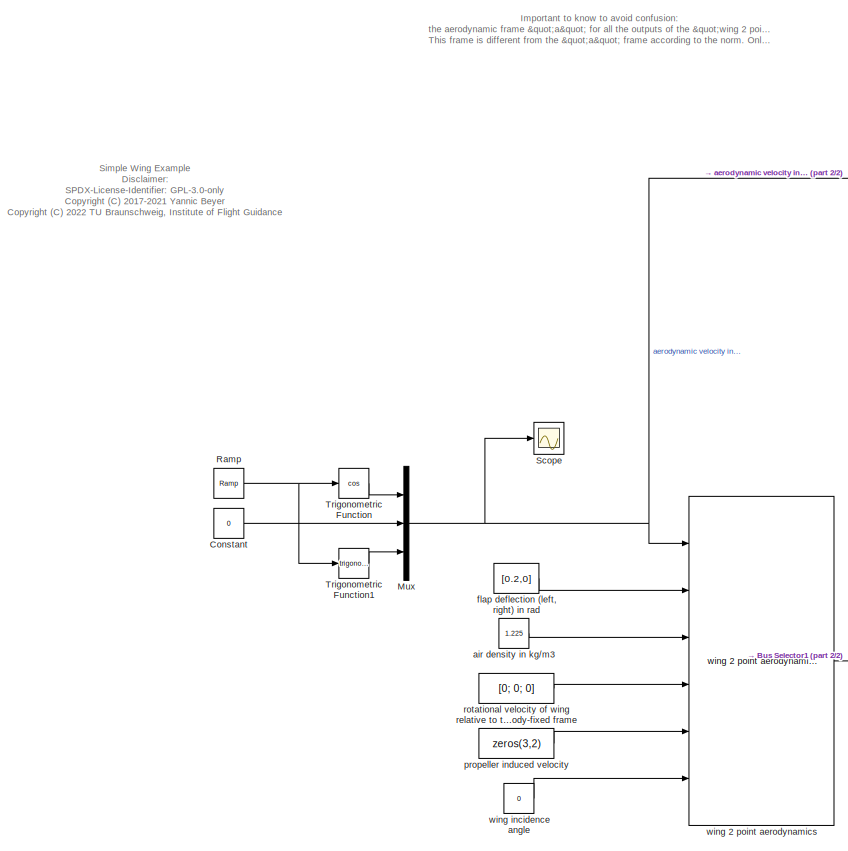
[diagram: root canvas - part 1/2, left side, full height]
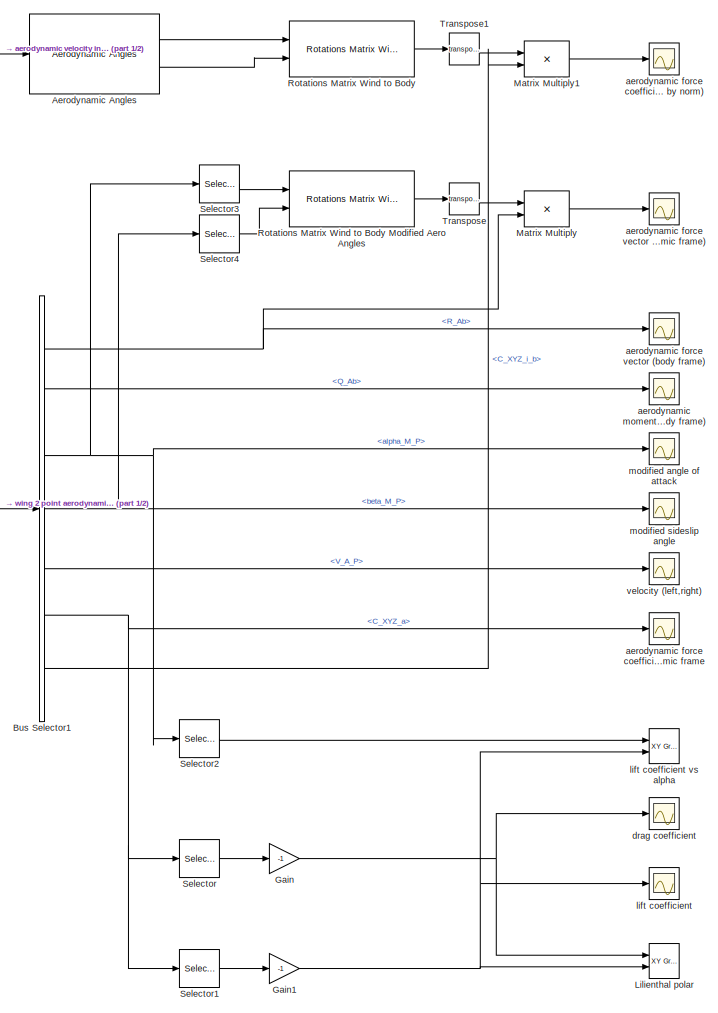
[diagram: root canvas - part 2/2, right side, full height]
MODEL slx_19e4713a41e1
KIND model
CONFIG AbsTol = auto
CONFIG EnableMultiTasking = off
CONFIG FixedStep = 0.01
CONFIG MaxStep = auto
CONFIG MinStep = auto
CONFIG RelTol = 1e-3
CONFIG SampleTimeConstraint = Unconstrained
CONFIG Solver = FixedStepAuto
CONFIG SolverName = FixedStepAuto
CONFIG StartTime = 0.0
CONFIG StopTime = 10
BLOCK [Reference] Aerodynamic Angles  REF=flight_parameters_lib/Aerodynamic Angles  (lib defined in slx_01e6108afe6f)
  Ports = [1, 2]
  SourceBlock = flight_parameters_lib/Aerodynamic Angles
  SourceProductName = LADAC
  SourceType = SubSystem
BLOCK [BusSelector] Bus Selector1
  OutputAsBus = off
  OutputSignals = dynamicsBody.R_Ab,dynamicsBody.Q_Ab,aeroAxes.alpha_M_P,aeroAxes.beta_M_P,aeroAxes.V_A_P,dynamicsBody.C_XYZ_a,dynamicsBody.C_XYZ_i_b
  Ports = [1, 7]
BLOCK [Constant] Constant
  Value = 0
BLOCK [Gain] Gain
  Gain = -1
  OutDataTypeStr = Inherit: Inherit via internal rule
  ParamDataTypeStr = Inherit: Inherit via internal rule
  SaturateOnIntegerOverflow = off
BLOCK [Gain] Gain1
  Gain = -1
  OutDataTypeStr = Inherit: Inherit via internal rule
  ParamDataTypeStr = Inherit: Inherit via internal rule
  SaturateOnIntegerOverflow = off
BLOCK [Reference] Lilienthal polar  REF=simulink/Sinks/XY Graph
  Ports = [2]
  SourceBlock = simulink/Sinks/XY Graph
  SourceProductBaseCode = SL
  SourceProductName = Simulink
  SourceType = XY scope.
BLOCK [Product] Matrix Multiply
  InputSameDT = off
  Multiplication = Matrix(*)
  OutDataTypeStr = Inherit: Inherit via internal rule
  Ports = [2, 1]
  RndMeth = Floor
  SaturateOnIntegerOverflow = off
BLOCK [Product] Matrix Multiply1
  InputSameDT = off
  Multiplication = Matrix(*)
  OutDataTypeStr = Inherit: Inherit via internal rule
  Ports = [2, 1]
  RndMeth = Floor
  SaturateOnIntegerOverflow = off
BLOCK [Mux] Mux
  DisplayOption = bar
  Inputs = 3
  Ports = [3, 1]
BLOCK [Reference] Ramp  REF=simulink/Sources/Ramp
  Ports = [0, 1]
  SourceBlock = simulink/Sources/Ramp
  SourceProductBaseCode = SL
  SourceProductName = Simulink
  SourceType = Ramp
BLOCK [Reference] Rotations Matrix Wind to Body  REF=axes_transformation_lib/Rotations Matrix  (lib defined in slx_69e2413c78c0)
Wind to Body
  Ports = [2, 1]
  SourceBlock = axes_transformation_lib/Rotations Matrix\nWind to Body
  SourceProductName = LADAC
  SourceType = SubSystem
BLOCK [Reference] Rotations Matrix Wind to Body Modified Aero Angles  REF=axes_transformation_lib/Rotations Matrix  (lib defined in slx_69e2413c78c0)
Wind to Body
Modified Aero Angles
  Ports = [2, 1]
  SourceBlock = axes_transformation_lib/Rotations Matrix\nWind to Body\nModified Aero Angles
  SourceProductName = LADAC
  SourceType = SubSystem
BLOCK [Scope] Scope
  Floating = off
  NumInputPorts = 1
  Ports = [1]
  ScopeSpecificationString = Simulink.scopes.TimeScopeBlockCfg('CurrentConfiguration', extmgr.ConfigurationSet(extmgr.Configuration('Core','General UI',true),extmgr.Configuration('Core','Source UI',true),extmgr.Configuration('Sources','WiredSimulink',true,'DataLoggingVariableName','ScopeData3'),extmgr.Configuration('Visuals','Time Domain',true,'SerializedDisplays',{struct('MinYLimReal','-1.25','MaxYLimReal','1.25','YLabelReal...<+1473ch>
BLOCK [Selector] Selector
  IndexOptions = Index vector (dialog),Index vector (dialog)
  Indices = 1,1
  InputPortWidth = 3
  NumberOfDimensions = 2
  OutputSizes = 1,1
  Ports = [1, 1]
BLOCK [Selector] Selector1
  IndexOptions = Index vector (dialog),Index vector (dialog)
  Indices = 3,1
  InputPortWidth = 3
  NumberOfDimensions = 2
  OutputSizes = 1,1
  Ports = [1, 1]
BLOCK [Selector] Selector2
  IndexOptions = Index vector (dialog)
  Indices = 1
  InputPortWidth = 2
  OutputSizes = 1
  Ports = [1, 1]
BLOCK [Selector] Selector3
  IndexOptions = Index vector (dialog)
  Indices = 1
  InputPortWidth = 2
  OutputSizes = 1
  Ports = [1, 1]
BLOCK [Selector] Selector4
  IndexOptions = Index vector (dialog)
  Indices = 1
  InputPortWidth = 2
  OutputSizes = 1
  Ports = [1, 1]
BLOCK [Math] Transpose
  Operator = transpose
  Ports = [1, 1]
BLOCK [Math] Transpose1
  Operator = transpose
  Ports = [1, 1]
BLOCK [Trigonometry] Trigonometric Function
  Operator = cos
  Ports = [1, 1]
BLOCK [Trigonometry] Trigonometric Function1
  Ports = [1, 1]
BLOCK [Scope] aerodynamic force coefficients (as defined by norm)
  Floating = off
  NumInputPorts = 1
  Ports = [1]
  ScopeSpecificationString = Simulink.scopes.TimeScopeBlockCfg('CurrentConfiguration', extmgr.ConfigurationSet(extmgr.Configuration('Core','General UI',true),extmgr.Configuration('Core','Source UI',true),extmgr.Configuration('Sources','WiredSimulink',true,'DataLoggingVariableName','ScopeData1'),extmgr.Configuration('Visuals','Time Domain',true,'SerializedDisplays',{struct('MinYLimReal','-1.84728','MaxYLimReal','1.29568','YLab...<+1553ch>
BLOCK [Scope] aerodynamic force coefficients in modified aerodynamic frame
  Floating = off
  NumInputPorts = 1
  Ports = [1]
  ScopeSpecificationString = Simulink.scopes.TimeScopeBlockCfg('CurrentConfiguration', extmgr.ConfigurationSet(extmgr.Configuration('Core','General UI',true),extmgr.Configuration('Core','Source UI',true),extmgr.Configuration('Sources','WiredSimulink',true,'DataLoggingVariableName','ScopeData5'),extmgr.Configuration('Visuals','Time Domain',true,'SerializedDisplays',{struct('MinYLimReal','-1.84754','MaxYLimReal','1.29804','YLab...<+1511ch>
BLOCK [Scope] aerodynamic force vector (aerodynamic frame)
  Floating = off
  NumInputPorts = 1
  Ports = [1]
  ScopeSpecificationString = Simulink.scopes.TimeScopeBlockCfg('CurrentConfiguration', extmgr.ConfigurationSet(extmgr.Configuration('Core','General UI',true),extmgr.Configuration('Core','Source UI',true),extmgr.Configuration('Sources','WiredSimulink',true,'DataLoggingVariableName','ScopeData6'),extmgr.Configuration('Visuals','Time Domain',true,'SerializedDisplays',{struct('MinYLimReal','-0.23186','MaxYLimReal','0.12857','YLab...<+1487ch>
BLOCK [Scope] aerodynamic force vector (body frame)
  Floating = off
  NumInputPorts = 1
  Ports = [1]
  ScopeSpecificationString = Simulink.scopes.TimeScopeBlockCfg('CurrentConfiguration', extmgr.ConfigurationSet(extmgr.Configuration('Core','General UI',true),extmgr.Configuration('Core','Source UI',true),extmgr.Configuration('Sources','WiredSimulink',true),extmgr.Configuration('Visuals','Time Domain',true,'SerializedDisplays',{struct('MinYLimReal','-0.24477','MaxYLimReal','0.24476','YLabelReal','','MinYLimMag','0.00000','MaxY...<+1405ch>
BLOCK [Scope] aerodynamic moment vector (body frame)
  Floating = off
  NumInputPorts = 1
  Ports = [1]
  ScopeSpecificationString = Simulink.scopes.TimeScopeBlockCfg('CurrentConfiguration', extmgr.ConfigurationSet(extmgr.Configuration('Core','General UI',true),extmgr.Configuration('Core','Source UI',true),extmgr.Configuration('Sources','WiredSimulink',true,'DataLoggingVariableName','ScopeData1'),extmgr.Configuration('Visuals','Time Domain',true),extmgr.Configuration('Tools','Plot Navigation',true),extmgr.Configuration('Tools',...<+40ch>
BLOCK [Constant] air density in kg//m3
  Value = 1.225
BLOCK [Scope] drag coefficient
  Floating = off
  NumInputPorts = 1
  Ports = [1]
  ScopeSpecificationString = Simulink.scopes.TimeScopeBlockCfg('CurrentConfiguration', extmgr.ConfigurationSet(extmgr.Configuration('Core','General UI',true),extmgr.Configuration('Core','Source UI',true),extmgr.Configuration('Sources','WiredSimulink',true,'DataLoggingVariableName','ScopeData8'),extmgr.Configuration('Visuals','Time Domain',true,'SerializedDisplays',{struct('MinYLimReal','-0.07912','MaxYLimReal','1.71211','YLab...<+1363ch>
BLOCK [Constant] flap deflection (left, right) in rad
  Value = [0.2,0]
  VectorParams1D = off
BLOCK [Scope] lift coefficient
  Floating = off
  NumInputPorts = 1
  Ports = [1]
  ScopeSpecificationString = Simulink.scopes.TimeScopeBlockCfg('CurrentConfiguration', extmgr.ConfigurationSet(extmgr.Configuration('Core','General UI',true),extmgr.Configuration('Core','Source UI',true),extmgr.Configuration('Sources','WiredSimulink',true,'DataLoggingVariableName','ScopeData9'),extmgr.Configuration('Visuals','Time Domain',true,'SerializedDisplays',{struct('MinYLimReal','-0.84433','MaxYLimReal','1.18558','YLab...<+1416ch>
BLOCK [Reference] lift coefficient vs alpha  REF=simulink/Sinks/XY Graph
  Ports = [2]
  SourceBlock = simulink/Sinks/XY Graph
  SourceProductBaseCode = SL
  SourceProductName = Simulink
  SourceType = XY scope.
BLOCK [Scope] modified angle of attack
  Floating = off
  NumInputPorts = 1
  Ports = [1]
  ScopeSpecificationString = Simulink.scopes.TimeScopeBlockCfg('CurrentConfiguration', extmgr.ConfigurationSet(extmgr.Configuration('Core','General UI',true),extmgr.Configuration('Core','Source UI',true),extmgr.Configuration('Sources','WiredSimulink',true,'DataLoggingVariableName','ScopeData2'),extmgr.Configuration('Visuals','Time Domain',true,'SerializedDisplays',{struct('MinYLimReal','-1.96071','MaxYLimReal','1.9623','YLabe...<+1384ch>
BLOCK [Scope] modified sideslip angle
  Floating = off
  NumInputPorts = 1
  Ports = [1]
  ScopeSpecificationString = Simulink.scopes.TimeScopeBlockCfg('CurrentConfiguration', extmgr.ConfigurationSet(extmgr.Configuration('Core','General UI',true),extmgr.Configuration('Core','Source UI',true),extmgr.Configuration('Sources','WiredSimulink',true,'DataLoggingVariableName','ScopeData7'),extmgr.Configuration('Visuals','Time Domain',true,'SerializedDisplays',{struct('MinYLimReal','-0.3927','MaxYLimReal','3.53429','YLabe...<+1409ch>
BLOCK [Constant] propeller induced velocity
  Value = zeros(3,2)
BLOCK [Constant] rotational velocity of wing relative to the air in body-fixed frame
  Value = [0; 0; 0]
  VectorParams1D = off
BLOCK [Scope] velocity (left,right)
  Floating = off
  NumInputPorts = 1
  Ports = [1]
  ScopeSpecificationString = Simulink.scopes.TimeScopeBlockCfg('CurrentConfiguration', extmgr.ConfigurationSet(extmgr.Configuration('Core','General UI',true),extmgr.Configuration('Core','Source UI',true),extmgr.Configuration('Sources','WiredSimulink',true,'DataLoggingVariableName','ScopeData4'),extmgr.Configuration('Visuals','Time Domain',true,'SerializedDisplays',{struct('MinYLimReal','0.9','MaxYLimReal','1.1','YLabelReal','...<+1371ch>
BLOCK [Reference] wing 2 point aerodynamics  REF=simple_wing_lib/wing 2 point aerodynamics  (lib defined in slx_d7e68b13d310)
  Ports = [6, 1]
  SourceBlock = simple_wing_lib/wing 2 point aerodynamics
  SourceProductName = LADAC
BLOCK [Constant] wing incidence angle 
  Value = 0
ANNOTATION (root): Important to know to avoid confusion: the aerodynamic frame "a" for all the outputs of the "wing 2 point aerodynamics" block is defined by the modified angles of attack alpha_M and beta_M. This frame is different from the "a" frame according to the norm. Only the x component is equal. The y and z component are only equal in special cases.
ANNOTATION (root): Simple Wing Example Disclaimer: SPDX-License-Identifier: GPL-3.0-only <copyright redacted>
LINE Aerodynamic Angles:1 -> Rotations Matrix Wind to Body:1
LINE Aerodynamic Angles:2 -> Rotations Matrix Wind to Body:2
NET Bus Selector1:1 -> Matrix Multiply:2, aerodynamic force vector (body frame):1
LINE Bus Selector1:2 -> aerodynamic moment vector (body frame):1
NET Bus Selector1:3 -> Selector2:1, Selector3:1, modified angle of attack:1
NET Bus Selector1:4 -> Selector4:1, modified sideslip angle:1
LINE Bus Selector1:5 -> velocity (left,right):1
NET Bus Selector1:6 -> Selector1:1, Selector:1, aerodynamic force coefficients in modified aerodynamic frame:1
LINE Bus Selector1:7 -> Matrix Multiply1:2
LINE Constant:1 -> Mux:2
NET Gain1:1 -> Lilienthal polar:2, lift coefficient vs alpha:2, lift coefficient:1
NET Gain:1 -> Lilienthal polar:1, drag coefficient:1
LINE Matrix Multiply1:1 -> aerodynamic force coefficients (as defined by norm):1
LINE Matrix Multiply:1 -> aerodynamic force vector (aerodynamic frame):1
NET Mux:1 -> Aerodynamic Angles:1, Scope:1, wing 2 point aerodynamics:1
NET Ramp:1 -> Trigonometric Function1:1, Trigonometric Function:1
LINE Rotations Matrix Wind to Body Modified Aero Angles:1 -> Transpose:1
LINE Rotations Matrix Wind to Body:1 -> Transpose1:1
LINE Selector1:1 -> Gain1:1
LINE Selector2:1 -> lift coefficient vs alpha:1
LINE Selector3:1 -> Rotations Matrix Wind to Body Modified Aero Angles:1
LINE Selector4:1 -> Rotations Matrix Wind to Body Modified Aero Angles:2
LINE Selector:1 -> Gain:1
LINE Transpose1:1 -> Matrix Multiply1:1
LINE Transpose:1 -> Matrix Multiply:1
LINE Trigonometric Function1:1 -> Mux:3
LINE Trigonometric Function:1 -> Mux:1
LINE air density in kg//m3:1 -> wing 2 point aerodynamics:3
LINE flap deflection (left, right) in rad:1 -> wing 2 point aerodynamics:2
LINE propeller induced velocity:1 -> wing 2 point aerodynamics:5
LINE rotational velocity of wing relative to the air in body-fixed frame:1 -> wing 2 point aerodynamics:4
LINE wing 2 point aerodynamics:1 -> Bus Selector1:1
LINE wing incidence angle :1 -> wing 2 point aerodynamics:6
note: NET lines group one-source signal fan-out (src -> all destinations, sorted); 1:1 wires keep LINE
